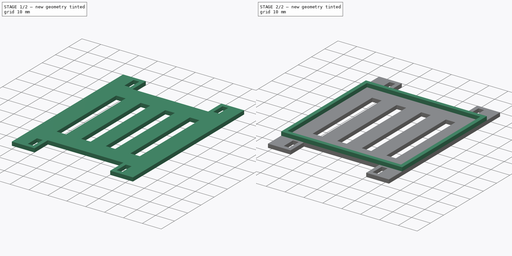
[diagram: build sequence overview — one tinted view per stage of 2, left to right]
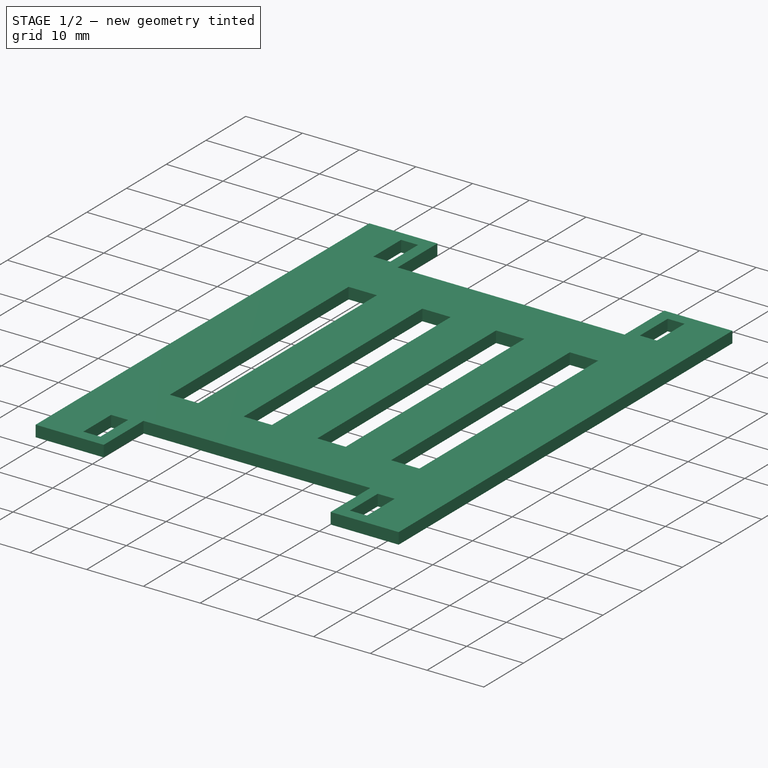
[diagram: stage 1 of 2 — iso view after this stage's code; geometry added in this stage tinted green]
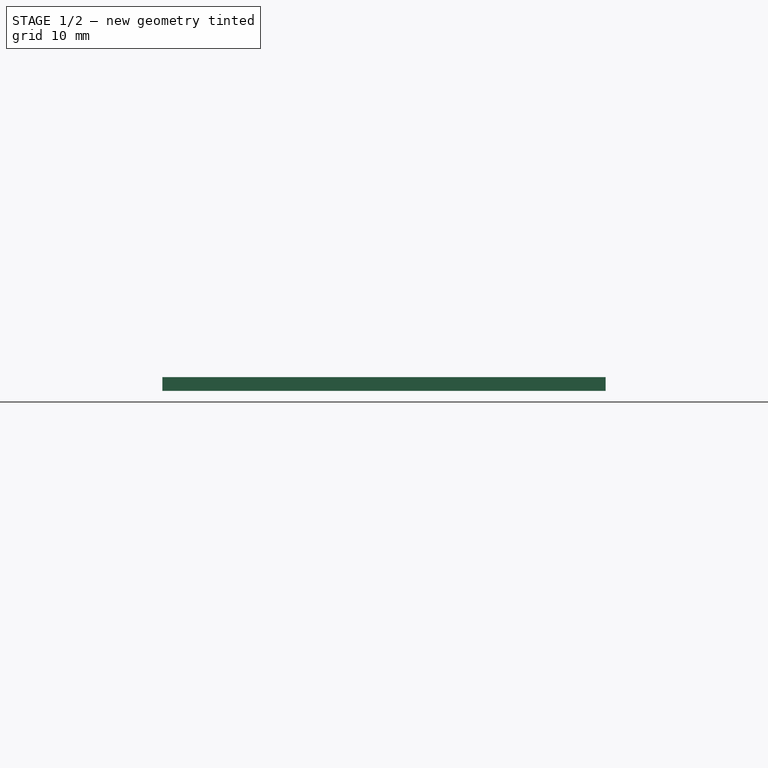
[diagram: stage 1 of 2 — front view after this stage's code; geometry added in this stage tinted green]
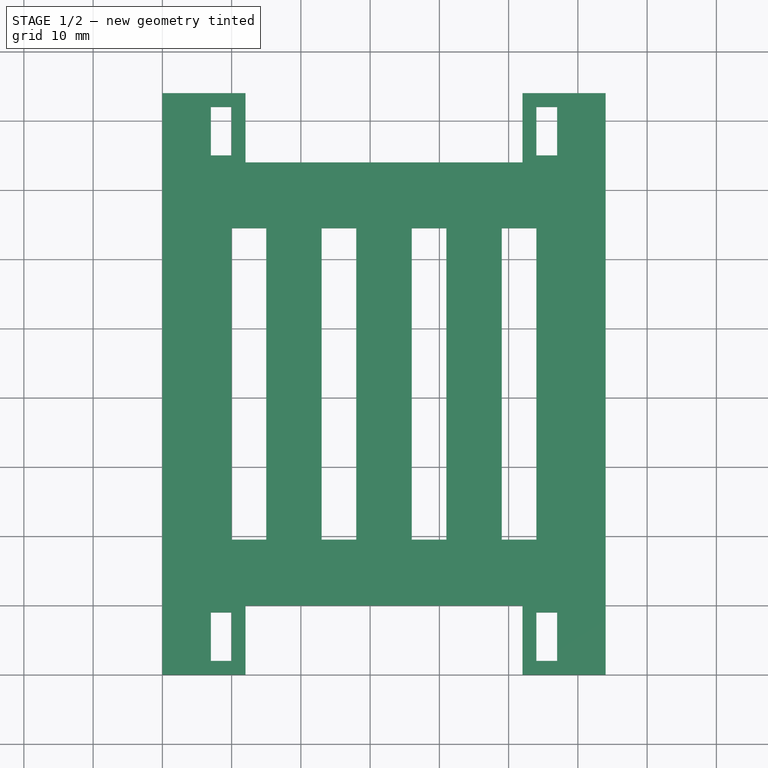
[diagram: stage 1 of 2 — top view after this stage's code; geometry added in this stage tinted green]
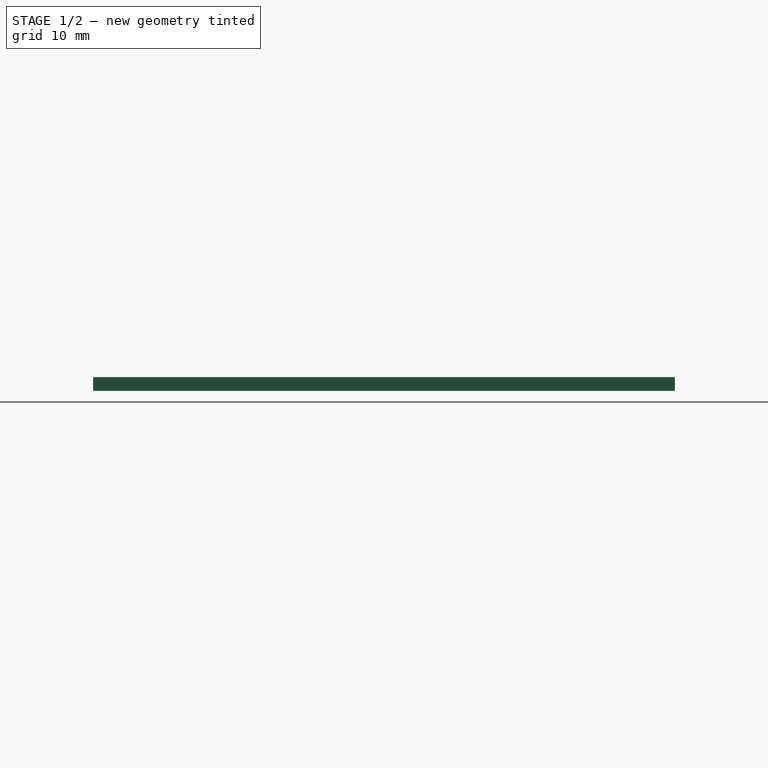
[diagram: stage 1 of 2 — right view after this stage's code; geometry added in this stage tinted green]
FCSTD DOCUMENT  (FreeCAD 0.18R16093 (Git))
Label: bottom V2
License: All rights reserved
LicenseURL: http://en.wikipedia.org/wiki/All_rights_reserved
objects: Sketcher::SketchObject×2, PartDesign::Pad×2, PartDesign::Body×1
note: 7 computed .brp shape members not serialized (recipe doc carries the construction recipe); baked Part::Feature solids carry a one-line shape summary decoded from their .brp

FEATURE [Sketcher::SketchObject] Sketch
  MapMode = 5
  Support = -> [XY_Plane]
  sketch-geometry (59):
    g0: LineSegment StartX=64 StartY=0 StartZ=0 EndX=64 EndY=84 EndZ=0
    g1: LineSegment StartX=0 StartY=84 StartZ=0 EndX=0 EndY=0 EndZ=0
    g2: LineSegment StartX=10 StartY=64.5 StartZ=0 EndX=15 EndY=64.5 EndZ=0
    g3: LineSegment StartX=15 StartY=64.5 StartZ=0 EndX=15 EndY=19.5 EndZ=0
    g4: LineSegment StartX=15 StartY=19.5 StartZ=0 EndX=10 EndY=19.5 EndZ=0
    g5: LineSegment StartX=10 StartY=19.5 StartZ=0 EndX=10 EndY=64.5 EndZ=0
    g6: LineSegment StartX=23 StartY=64.5 StartZ=0 EndX=28 EndY=64.5 EndZ=0
    g7: LineSegment StartX=28 StartY=64.5 StartZ=0 EndX=28 EndY=19.5 EndZ=0
    g8: LineSegment StartX=28 StartY=19.5 StartZ=0 EndX=23 EndY=19.5 EndZ=0
    g9: LineSegment StartX=23 StartY=19.5 StartZ=0 EndX=23 EndY=64.5 EndZ=0
    g10: LineSegment StartX=36 StartY=64.5 StartZ=0 EndX=41 EndY=64.5 EndZ=0
    g11: LineSegment StartX=41 StartY=64.5 StartZ=0 EndX=41 EndY=19.5 EndZ=0
    g12: LineSegment StartX=41 StartY=19.5 StartZ=0 EndX=36 EndY=19.5 EndZ=0
    g13: LineSegment StartX=36 StartY=19.5 StartZ=0 EndX=36 EndY=64.5 EndZ=0
    g14: LineSegment StartX=49 StartY=64.5 StartZ=0 EndX=54 EndY=64.5 EndZ=0
    g15: LineSegment StartX=54 StartY=64.5 StartZ=0 EndX=54 EndY=19.5 EndZ=0
    g16: LineSegment StartX=54 StartY=19.5 StartZ=0 EndX=49 EndY=19.5 EndZ=0
    g17: LineSegment StartX=49 StartY=19.5 StartZ=0 EndX=49 EndY=64.5 EndZ=0
    g18: LineSegment [constr] StartX=15 StartY=64.5 StartZ=0 EndX=23 EndY=64.5 EndZ=0
    g19: LineSegment [constr] StartX=28 StartY=64.5 StartZ=0 EndX=36 EndY=64.5 EndZ=0
    g20: LineSegment [constr] StartX=41 StartY=64.5 StartZ=0 EndX=49 EndY=64.5 EndZ=0
    g21: LineSegment [constr] StartX=10 StartY=64.5 StartZ=0 EndX=10 EndY=84 EndZ=0
    g22: LineSegment [constr] StartX=10 StartY=19.5 StartZ=0 EndX=10 EndY=0 EndZ=0
    g23: LineSegment [constr] StartX=0 StartY=64.5 StartZ=0 EndX=10 EndY=64.5 EndZ=0
    g24: LineSegment [constr] StartX=54 StartY=64.5 StartZ=0 EndX=64 EndY=64.5 EndZ=0
    g25: LineSegment StartX=0 StartY=84 StartZ=0 EndX=12 EndY=84 EndZ=0
    g26: LineSegment StartX=12 StartY=84 StartZ=0 EndX=12 EndY=74 EndZ=0
    g27: LineSegment StartX=12 StartY=74 StartZ=0 EndX=52 EndY=74 EndZ=0
    g28: LineSegment StartX=52 StartY=74 StartZ=0 EndX=52 EndY=84 EndZ=0
    g29: LineSegment StartX=52 StartY=84 StartZ=0 EndX=64 EndY=84 EndZ=0
    g30: LineSegment StartX=0 StartY=0 StartZ=0 EndX=12 EndY=0 EndZ=0
    g31: LineSegment StartX=12 StartY=0 StartZ=0 EndX=12 EndY=10 EndZ=0
    g32: LineSegment StartX=12 StartY=10 StartZ=0 EndX=52 EndY=10 EndZ=0
    g33: LineSegment StartX=52 StartY=10 StartZ=0 EndX=52 EndY=0 EndZ=0
    g34: LineSegment StartX=52 StartY=0 StartZ=0 EndX=64 EndY=0 EndZ=0
    g35: LineSegment StartX=7 StartY=82 StartZ=0 EndX=10 EndY=82 EndZ=0
    g36: LineSegment StartX=10 StartY=82 StartZ=0 EndX=10 EndY=75 EndZ=0
    g37: LineSegment StartX=10 StartY=75 StartZ=0 EndX=7 EndY=75 EndZ=0
    g38: LineSegment StartX=7 StartY=75 StartZ=0 EndX=7 EndY=82 EndZ=0
    g39: LineSegment StartX=54 StartY=82 StartZ=0 EndX=57 EndY=82 EndZ=0
    g40: LineSegment StartX=57 StartY=82 StartZ=0 EndX=57 EndY=75 EndZ=0
    g41: LineSegment StartX=57 StartY=75 StartZ=0 EndX=54 EndY=75 EndZ=0
    g42: LineSegment StartX=54 StartY=75 StartZ=0 EndX=54 EndY=82 EndZ=0
    g43: LineSegment StartX=54 StartY=9 StartZ=0 EndX=57 EndY=9 EndZ=0
    g44: LineSegment StartX=57 StartY=9 StartZ=0 EndX=57 EndY=2 EndZ=0
    g45: LineSegment StartX=57 StartY=2 StartZ=0 EndX=54 EndY=2 EndZ=0
    g46: LineSegment StartX=54 StartY=2 StartZ=0 EndX=54 EndY=9 EndZ=0
    g47: LineSegment StartX=7 StartY=9 StartZ=0 EndX=10 EndY=9 EndZ=0
    g48: LineSegment StartX=10 StartY=9 StartZ=0 EndX=10 EndY=2 EndZ=0
    g49: LineSegment StartX=10 StartY=2 StartZ=0 EndX=7 EndY=2 EndZ=0
    g50: LineSegment StartX=7 StartY=2 StartZ=0 EndX=7 EndY=9 EndZ=0
    g51: LineSegment [constr] StartX=10 StartY=2 StartZ=0 EndX=10 EndY=0 EndZ=0
    g52: LineSegment [constr] StartX=10 StartY=2 StartZ=0 EndX=12 EndY=2 EndZ=0
    g53: LineSegment [constr] StartX=54 StartY=2 StartZ=0 EndX=52 EndY=2 EndZ=0
    g54: LineSegment [constr] StartX=54 StartY=2 StartZ=0 EndX=54 EndY=0 EndZ=0
    g55: LineSegment [constr] StartX=54 StartY=82 StartZ=0 EndX=54 EndY=84 EndZ=0
    g56: LineSegment [constr] StartX=54 StartY=82 StartZ=0 EndX=52 EndY=82 EndZ=0
    g57: LineSegment [constr] StartX=10 StartY=82 StartZ=0 EndX=10 EndY=84 EndZ=0
    g58: LineSegment [constr] StartX=10 StartY=82 StartZ=0 EndX=12 EndY=82 EndZ=0
  constraints (173):
    c: Vertical(g0)
    c: Vertical(g1)
    c: Distance(g1) = 84
    c: Coincident(g2,g3)
    c: Coincident(g3,g4)
    c: Coincident(g4,g5)
    c: Coincident(g5,g2)
    c: Horizontal(g2)
    c: Horizontal(g4)
    c: Vertical(g3)
    c: Vertical(g5)
    c: Coincident(g6,g7)
    c: Coincident(g7,g8)
    c: Coincident(g8,g9)
    c: Coincident(g9,g6)
    c: Horizontal(g6)
    c: Vertical(g7)
    c: Vertical(g9)
    c: Coincident(g10,g11)
    c: Coincident(g11,g12)
    c: Coincident(g12,g13)
    c: Coincident(g13,g10)
    c: Horizontal(g10)
    c: Horizontal(g12)
    c: Vertical(g11)
    c: Vertical(g13)
    c: Coincident(g14,g15)
    c: Coincident(g15,g16)
    c: Coincident(g16,g17)
    c: Coincident(g17,g14)
    c: Horizontal(g14)
    c: Horizontal(g16)
    c: Vertical(g15)
    c: Vertical(g17)
    c: Equal(g2,g6)
    c: Equal(g6,g10)
    c: Equal(g10,g14)
    c: Coincident(g6,g18)
    c: Horizontal(g18)
    c: Horizontal(g19)
    c: Horizontal(g20)
    c: Coincident(g20,g14)
    c: Coincident(g20,g10)
    c: Coincident(g19,g10)
    c: Coincident(g19,g6)
    c: Coincident(g18,g2)
    c: Equal(g18,g19)
    c: Equal(g19,g20)
    c: Equal(g5,g9)
    c: Equal(g9,g13)
    c: Equal(g13,g17)
    c: Horizontal(g8)
    c: DistanceY(g5,g5) = 45
    c: Vertical(g21)
    c: Coincident(g21,g2)
    c: Vertical(g22)
    c: Coincident(g4,g22)
    c: DistanceX(g2,g2) = 5
    c: DistanceX(g18,g18) = 8
    c: Coincident(g23,g2)
    c: PointOnObject(g23,g1)
    c: Horizontal(g23)
    c: PointOnObject(g24,g0)
    c: Coincident(g24,g14)
    c: Horizontal(g24)
    c: Equal(g24,g23)
    c: DistanceX(g1,g0) = 64
    c: Coincident(g25,g26)
    c: Coincident(g26,g27)
    c: Coincident(g27,g28)
    c: Coincident(g28,g29)
    c: Horizontal(g29)
    c: Horizontal(g27)
    c: Horizontal(g25)
    c: Vertical(g26)
    c: Vertical(g28)
    c: Equal(g29,g25)
    c: Coincident(g30,g31)
    c: Coincident(g31,g32)
    c: Coincident(g32,g33)
    c: Coincident(g33,g34)
    c: Horizontal(g34)
    c: Horizontal(g32)
    c: Horizontal(g30)
    c: Vertical(g31)
    c: Equal(g34,g30)
    c: Equal(g33,g31)
    c: Equal(g32,g27)
    c: Equal(g29,g34)
    c: Equal(g33,g28)
    c: Equal(g28,g26)
    c: Coincident(g30,g1)
    c: Coincident(g1,g-1)
    c: Coincident(g34,g0)
    c: Coincident(g29,g0)
    c: Coincident(g25,g1)
    c: DistanceX(g34,g34) = 12
    c: DistanceY(g33,g33) = 10
    c: PointOnObject(g21,g25)
    c: Equal(g21,g22)
    c: PointOnObject(g22,g30)
    c: Coincident(g35,g36)
    c: Coincident(g36,g37)
    c: Coincident(g37,g38)
    c: Coincident(g38,g35)
    c: Horizontal(g35)
    c: Horizontal(g37)
    c: Vertical(g36)
    c: Vertical(g38)
    c: Coincident(g39,g40)
    c: Coincident(g40,g41)
    c: Coincident(g41,g42)
    c: Coincident(g42,g39)
    c: Horizontal(g39)
    c: Horizontal(g41)
    c: Vertical(g40)
    c: Vertical(g42)
    c: Coincident(g43,g44)
    c: Coincident(g44,g45)
    c: Coincident(g45,g46)
    c: Coincident(g46,g43)
    c: Horizontal(g43)
    c: Horizontal(g45)
    c: Vertical(g44)
    c: Vertical(g46)
    c: Coincident(g47,g48)
    c: Coincident(g48,g49)
    c: Coincident(g49,g50)
    c: Coincident(g50,g47)
    c: Horizontal(g47)
    c: Horizontal(g49)
    c: Vertical(g48)
    c: Vertical(g50)
    c: Equal(g47,g35)
    c: Equal(g35,g39)
    c: Equal(g39,g43)
    c: Equal(g46,g50)
    c: Equal(g50,g38)
    c: Equal(g38,g42)
    c: DistanceX(g47,g47) = 3
    c: DistanceY(g48,g48) = 7
    c: Coincident(g51,g48)
    c: PointOnObject(g51,g30)
    c: Vertical(g51)
    c: Coincident(g52,g48)
    c: PointOnObject(g52,g31)
    c: Horizontal(g52)
    c: Coincident(g53,g45)
    c: PointOnObject(g53,g33)
    c: Horizontal(g53)
    c: Coincident(g54,g45)
    c: PointOnObject(g54,g34)
    c: Vertical(g54)
    c: Coincident(g55,g39)
    c: PointOnObject(g55,g29)
    c: Vertical(g55)
    c: Coincident(g56,g39)
    c: PointOnObject(g56,g28)
    c: Horizontal(g56)
    c: Coincident(g57,g35)
    c: PointOnObject(g57,g25)
    c: Vertical(g57)
    c: Coincident(g58,g35)
    c: PointOnObject(g58,g26)
    c: Horizontal(g58)
    c: Equal(g51,g54)
    c: Equal(g54,g55)
    c: Equal(g55,g57)
    c: Equal(g58,g56)
    c: Equal(g56,g53)
    c: Equal(g53,g52)
    c: DistanceY(g51,g51) = 2
    c: DistanceX(g52,g52) = 2
FEATURE [PartDesign::Pad] Pad
  Length = 2
  Length2 = 100
  Profile = -> Sketch
  Type = 0
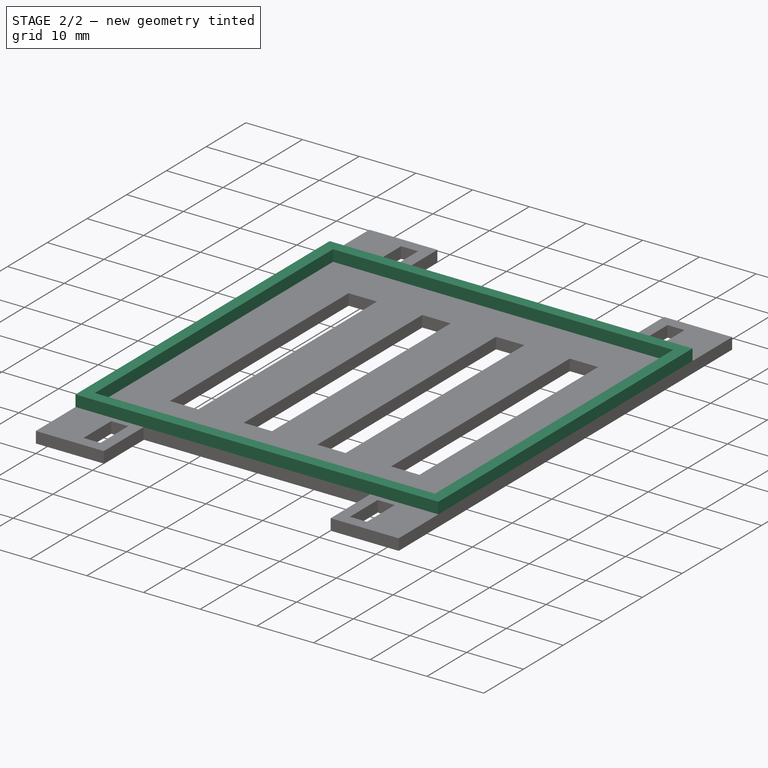
[diagram: stage 2 of 2 — iso view after this stage's code; geometry added in this stage tinted green]
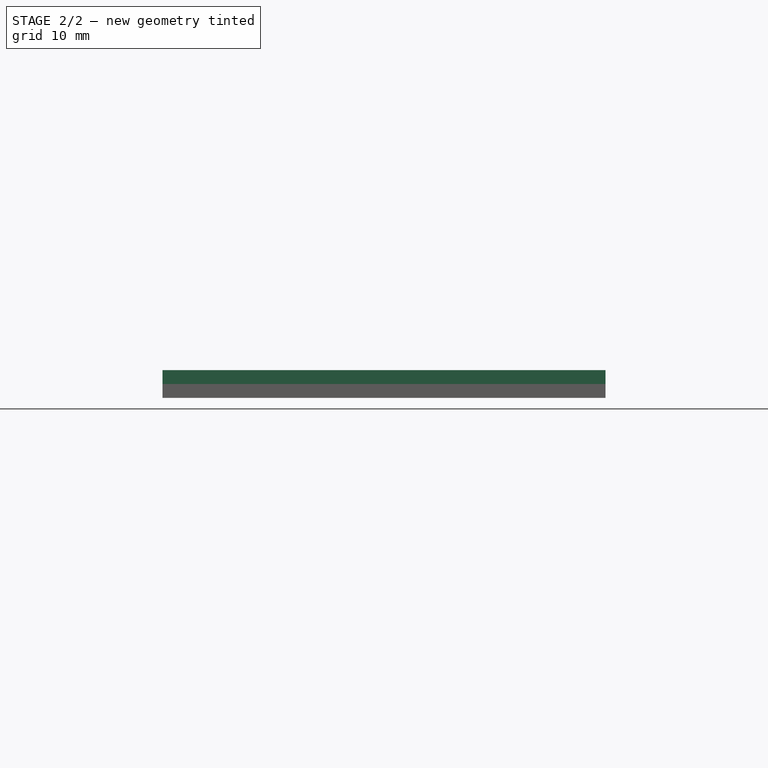
[diagram: stage 2 of 2 — front view after this stage's code; geometry added in this stage tinted green]
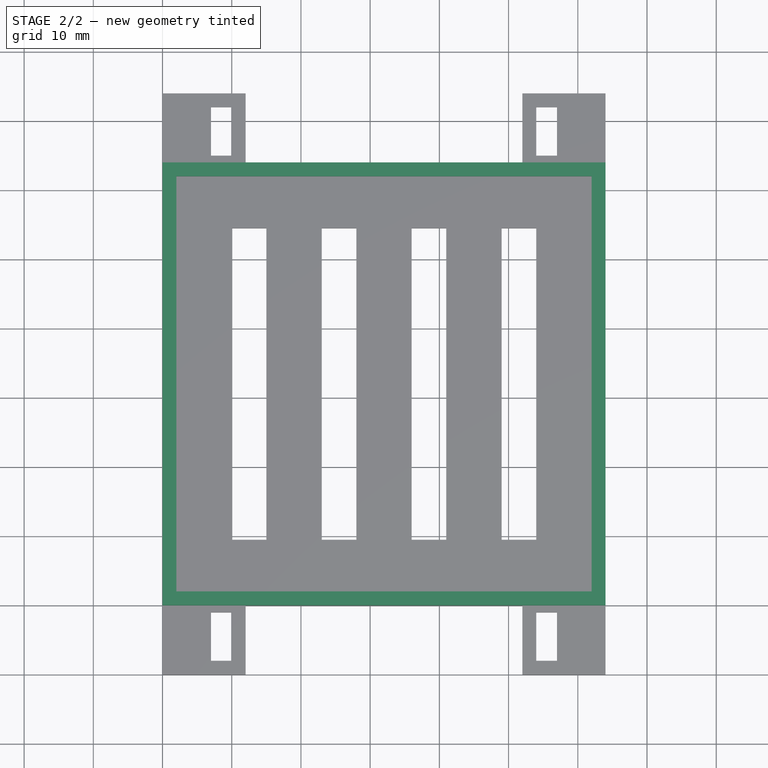
[diagram: stage 2 of 2 — top view after this stage's code; geometry added in this stage tinted green]
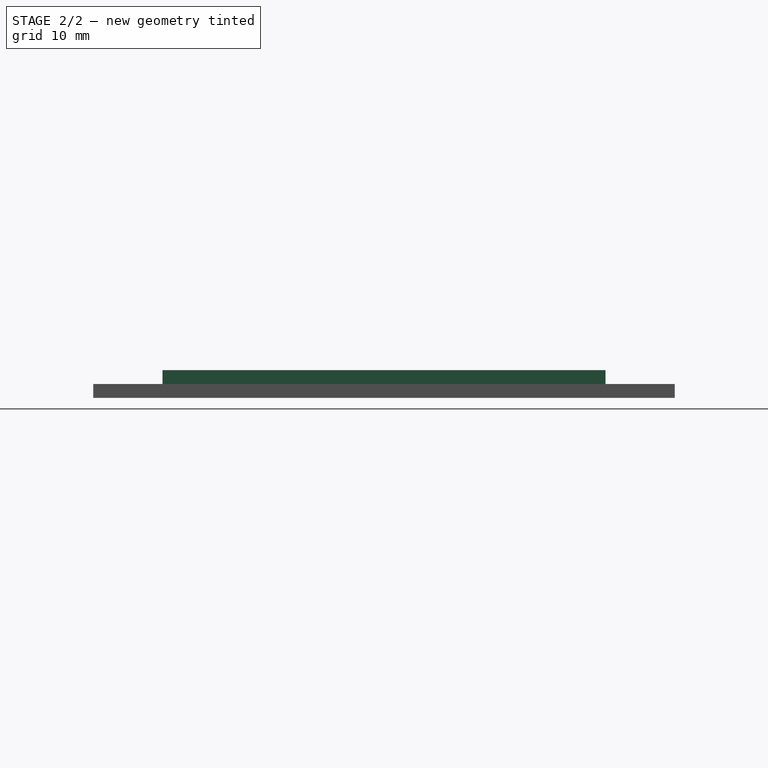
[diagram: stage 2 of 2 — right view after this stage's code; geometry added in this stage tinted green]
FEATURE [Sketcher::SketchObject] Sketch006
  MapMode = 5
  Placement = pos=(0,0,2) rot=(0,0,1;0rad)
  sketch-geometry (9):
    g0: LineSegment StartX=0 StartY=74 StartZ=0 EndX=64 EndY=74 EndZ=0
    g1: LineSegment StartX=64 StartY=74 StartZ=0 EndX=64 EndY=10 EndZ=0
    g2: LineSegment StartX=64 StartY=10 StartZ=0 EndX=0 EndY=10 EndZ=0
    g3: LineSegment StartX=0 StartY=10 StartZ=0 EndX=0 EndY=74 EndZ=0
    g4: LineSegment [constr] StartX=0 StartY=10 StartZ=0 EndX=0 EndY=0 EndZ=0
    g5: LineSegment StartX=2 StartY=72 StartZ=0 EndX=62 EndY=72 EndZ=0
    g6: LineSegment StartX=62 StartY=72 StartZ=0 EndX=62 EndY=12 EndZ=0
    g7: LineSegment StartX=62 StartY=12 StartZ=0 EndX=2 EndY=12 EndZ=0
    g8: LineSegment StartX=2 StartY=12 StartZ=0 EndX=2 EndY=72 EndZ=0
  constraints (26):
    c: Coincident(g0,g1)
    c: Coincident(g1,g2)
    c: Coincident(g2,g3)
    c: Coincident(g3,g0)
    c: Horizontal(g0)
    c: Horizontal(g2)
    c: Vertical(g1)
    c: Vertical(g3)
    c: DistanceX(g2,g2) = 64
    c: DistanceY(g1,g1) = 64
    c: Vertical(g4)
    c: Coincident(g4,g-1)
    c: Coincident(g4,g2)
    c: DistanceY(g4,g4) = 10
    c: Coincident(g5,g6)
    c: Coincident(g6,g7)
    c: Coincident(g7,g8)
    c: Coincident(g8,g5)
    c: Horizontal(g5)
    c: Horizontal(g7)
    c: Vertical(g6)
    c: Vertical(g8)
    c: DistanceY(g5,g0) = 2
    c: DistanceY(g2,g7) = 2
    c: DistanceX(g5,g0) = 2
    c: DistanceX(g0,g5) = 2
FEATURE [PartDesign::Pad] Pad001
  BaseFeature = -> Pad
  Length = 2
  Length2 = 100
  Profile = -> Sketch006
  Type = 0
FEATURE [PartDesign::Body] Body
  Group = -> [Sketch,Pad,Sketch006,Pad001]
  Origin = -> Origin
  Tip = -> Pad001
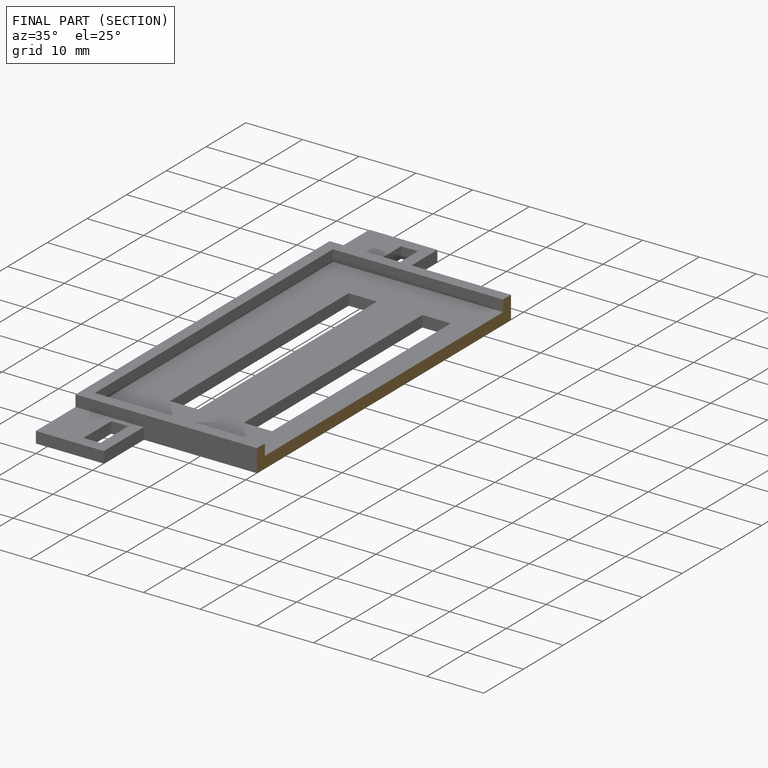
[diagram: finished part — half-section view (interior)]
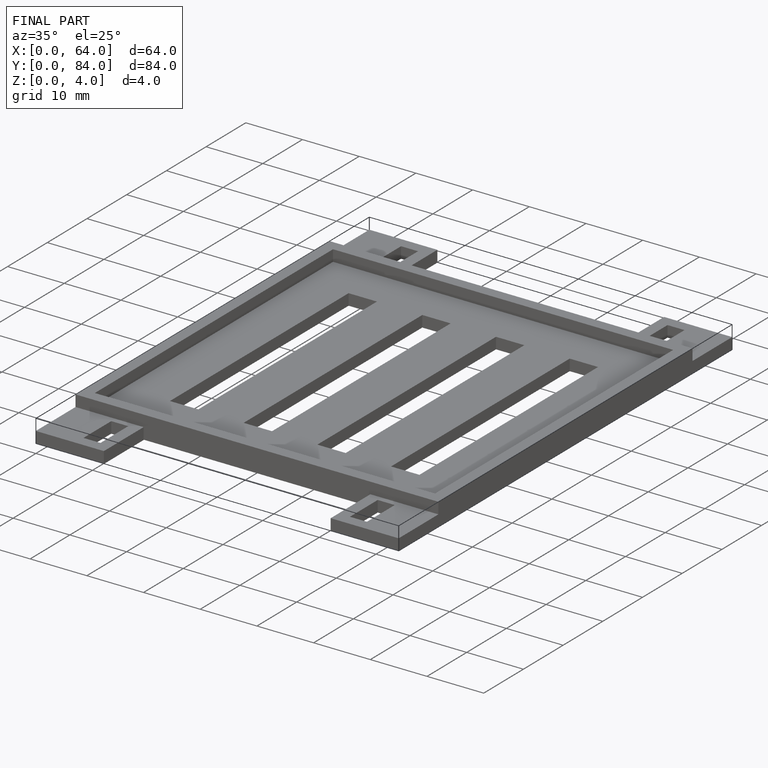
[diagram: finished part — iso view with bounding-box wireframe]
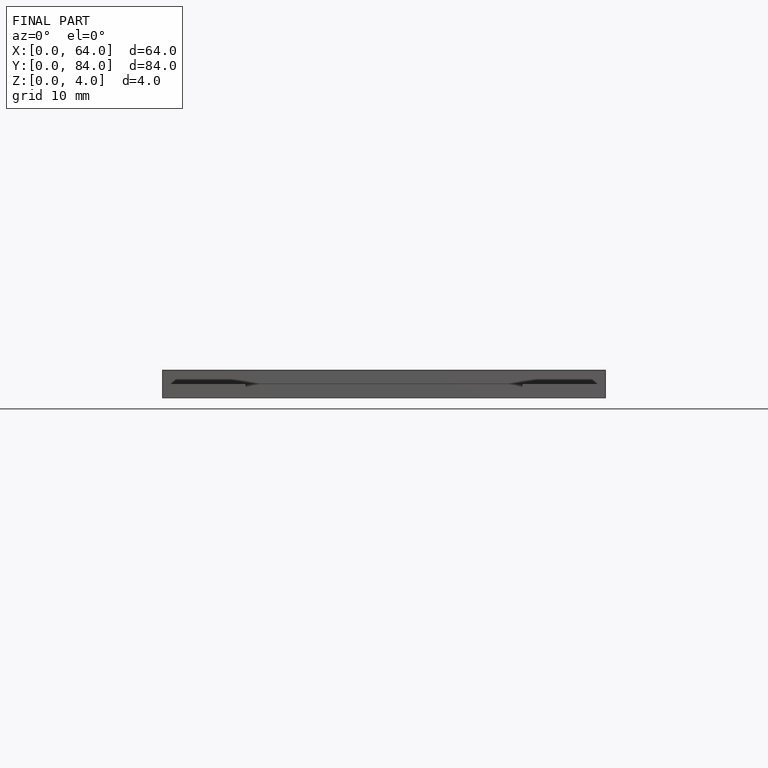
[diagram: finished part — front view with bounding-box wireframe]
